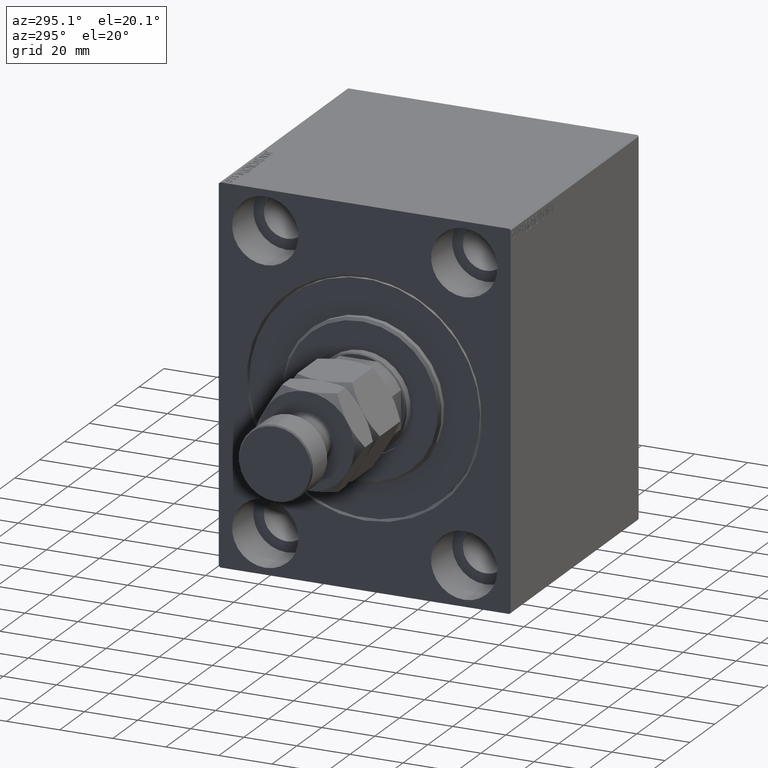
[diagram: clean part render]
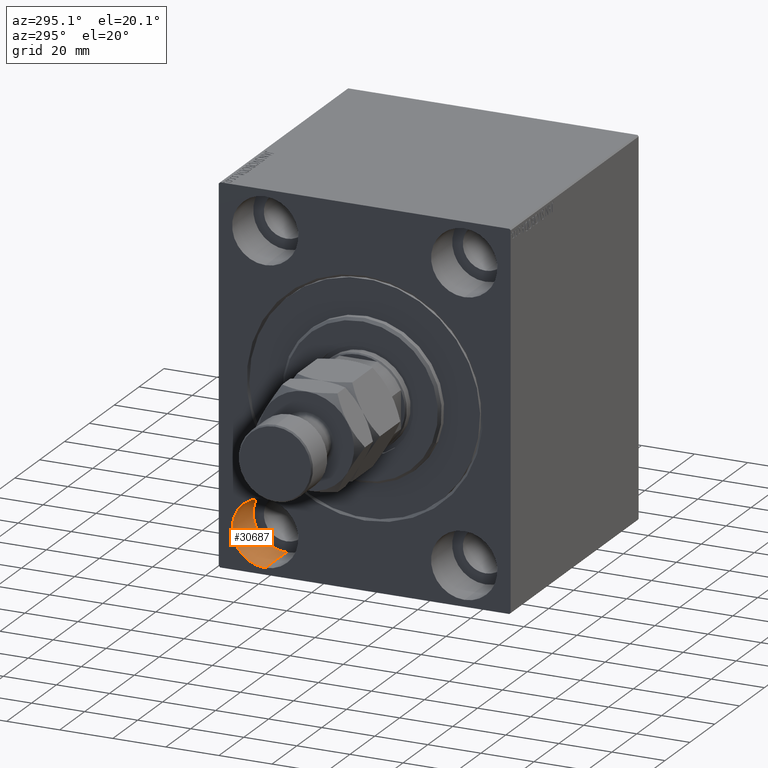
[diagram: same view with one face highlighted and labeled with its STEP entity id]
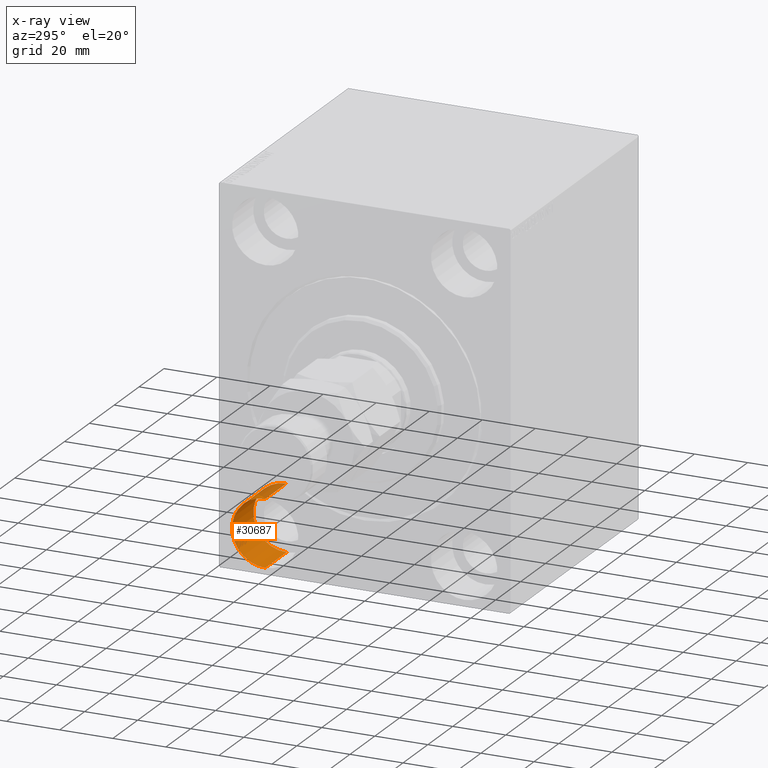
[diagram: x-ray of the same camera — body ghosted, the highlighted face saturated]
A machine part, auxiliary view. The second image highlights one B-rep face of the part: STEP entity #30687.
The next image is the same camera in x-ray: the body ghosted, the highlighted face saturated — about 10% of this face is hidden behind the body in this view.
In plain terms, the highlighted cylindrical surface (partial cylindrical patch) has radius 12.5 mm, axis along (-1, -0, -0).
Its self-contained STEP definition (entity closure, byte-faithful):
#50 = VERTEX_POINT ( 'NONE', #21181 ) ;
#178 = CARTESIAN_POINT ( 'NONE',  ( 0.000000000000000000, 37.49999999999997868, -42.49999999999999289 ) ) ;
#646 = EDGE_CURVE ( 'NONE', #8415, #43333, #33692, .T. ) ;
#2160 = CARTESIAN_POINT ( 'NONE',  ( 17.00000000000000000, 37.49999999999997868, -42.49999999999999289 ) ) ;
#2173 = EDGE_LOOP ( 'NONE', ( #26672, #8497, #22325, #30337 ) ) ;
#2702 = CIRCLE ( 'NONE', #17436, 12.49999999999999645 ) ;
#5570 = CARTESIAN_POINT ( 'NONE',  ( 17.00000000000000000, 37.49999999999997868, -67.49999999999998579 ) ) ;
#7985 = EDGE_CURVE ( 'NONE', #43333, #50, #2702, .T. ) ;
#8301 = CARTESIAN_POINT ( 'NONE',  ( 0.000000000000000000, 37.49999999999997868, -54.99999999999999289 ) ) ;
#8415 = VERTEX_POINT ( 'NONE', #11144 ) ;
#8497 = ORIENTED_EDGE ( 'NONE', *, *, #43623, .F. ) ;
#9144 = DIRECTION ( 'NONE',  ( -1.000000000000000000, -0.000000000000000000, -0.000000000000000000 ) ) ;
#11028 = VERTEX_POINT ( 'NONE', #17476 ) ;
#11144 = CARTESIAN_POINT ( 'NONE',  ( 17.00000000000000000, 37.49999999999997868, -42.49999999999999289 ) ) ;
#12498 = DIRECTION ( 'NONE',  ( -1.000000000000000000, -0.000000000000000000, -0.000000000000000000 ) ) ;
#14794 = EDGE_CURVE ( 'NONE', #11028, #50, #29976, .T. ) ;
#15111 = CIRCLE ( 'NONE', #29780, 12.49999999999999645 ) ;
#16208 = DIRECTION ( 'NONE',  ( -1.000000000000000000, -0.000000000000000000, -0.000000000000000000 ) ) ;
#17436 = AXIS2_PLACEMENT_3D ( 'NONE', #8301, #43963, #26014 ) ;
#17476 = CARTESIAN_POINT ( 'NONE',  ( 17.00000000000000000, 37.49999999999997868, -67.49999999999998579 ) ) ;
#18266 = DIRECTION ( 'NONE',  ( -1.000000000000000000, 0.000000000000000000, 0.000000000000000000 ) ) ;
#21181 = CARTESIAN_POINT ( 'NONE',  ( 0.000000000000000000, 37.49999999999997868, -67.49999999999998579 ) ) ;
#22325 = ORIENTED_EDGE ( 'NONE', *, *, #646, .T. ) ;
#22609 = CARTESIAN_POINT ( 'NONE',  ( 17.00000000000000000, 37.49999999999997868, -54.99999999999999289 ) ) ;
#23405 = DIRECTION ( 'NONE',  ( 0.000000000000000000, 0.000000000000000000, 1.000000000000000000 ) ) ;
#26014 = DIRECTION ( 'NONE',  ( 0.000000000000000000, 0.000000000000000000, 1.000000000000000000 ) ) ;
#26672 = ORIENTED_EDGE ( 'NONE', *, *, #14794, .F. ) ;
#28276 = FACE_OUTER_BOUND ( 'NONE', #2173, .T. ) ;
#28755 = AXIS2_PLACEMENT_3D ( 'NONE', #33326, #9144, #23405 ) ;
#29284 = DIRECTION ( 'NONE',  ( 0.000000000000000000, 0.000000000000000000, 1.000000000000000000 ) ) ;
#29780 = AXIS2_PLACEMENT_3D ( 'NONE', #22609, #18266, #29284 ) ;
#29976 = LINE ( 'NONE', #5570, #44600 ) ;
#30337 = ORIENTED_EDGE ( 'NONE', *, *, #7985, .T. ) ;
#30687 = ADVANCED_FACE ( 'NONE', ( #28276 ), #42316, .F. ) ;
#33326 = CARTESIAN_POINT ( 'NONE',  ( 17.00000000000000000, 37.49999999999997868, -54.99999999999999289 ) ) ;
#33692 = LINE ( 'NONE', #2160, #39973 ) ;
#39973 = VECTOR ( 'NONE', #16208, 1000.000000000000000 ) ;
#42316 = CYLINDRICAL_SURFACE ( 'NONE', #28755, 12.49999999999999645 ) ;
#43333 = VERTEX_POINT ( 'NONE', #178 ) ;
#43623 = EDGE_CURVE ( 'NONE', #8415, #11028, #15111, .T. ) ;
#43963 = DIRECTION ( 'NONE',  ( -1.000000000000000000, 0.000000000000000000, 0.000000000000000000 ) ) ;
#44600 = VECTOR ( 'NONE', #12498, 1000.000000000000000 ) ;